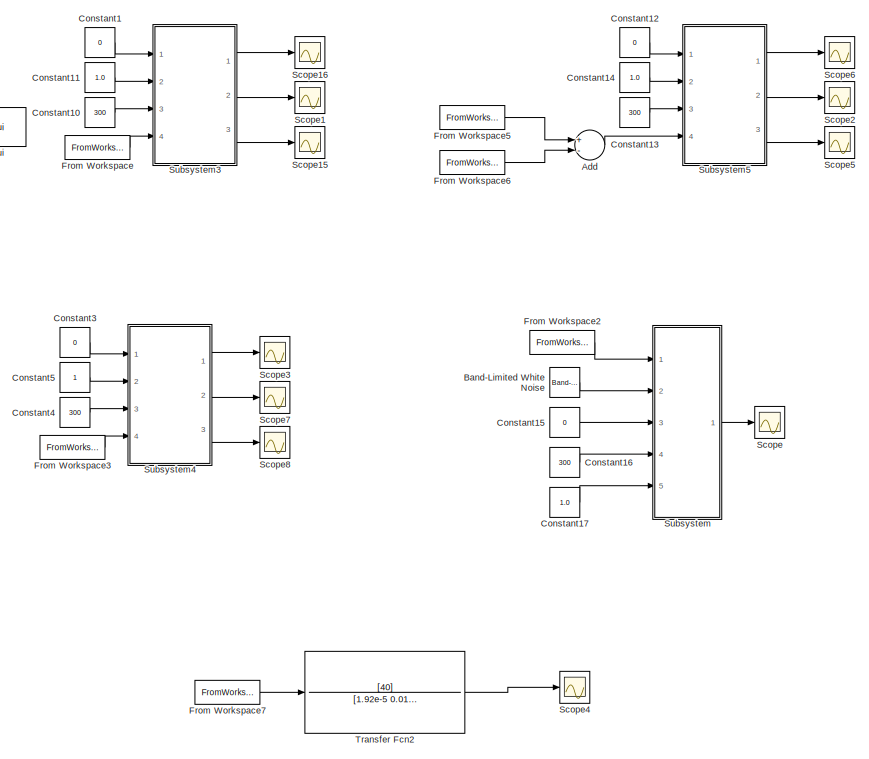
[diagram: root canvas - part 1/2, right side, full height]
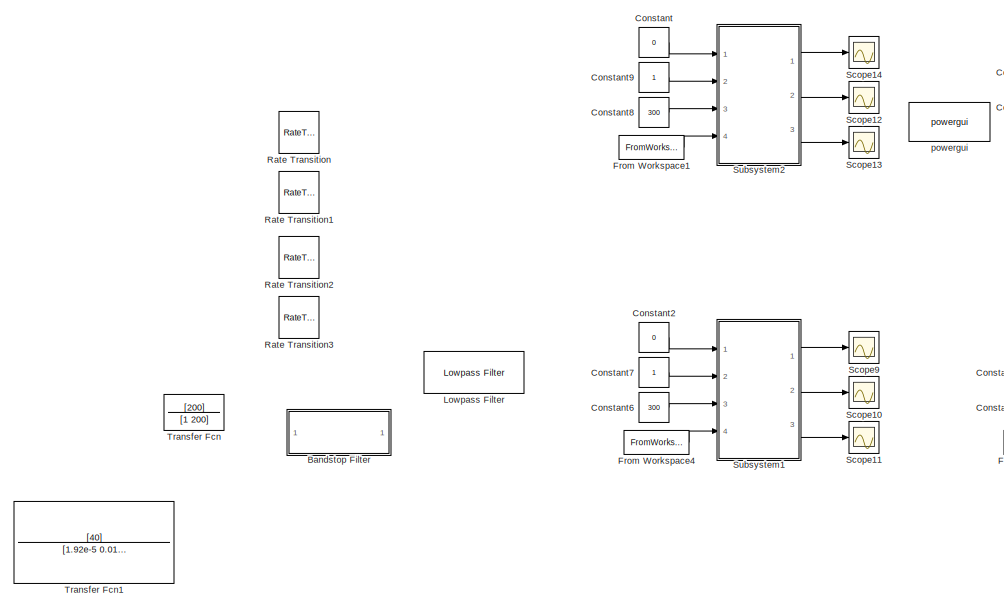
[diagram: root canvas - part 2/2, left side, full height]
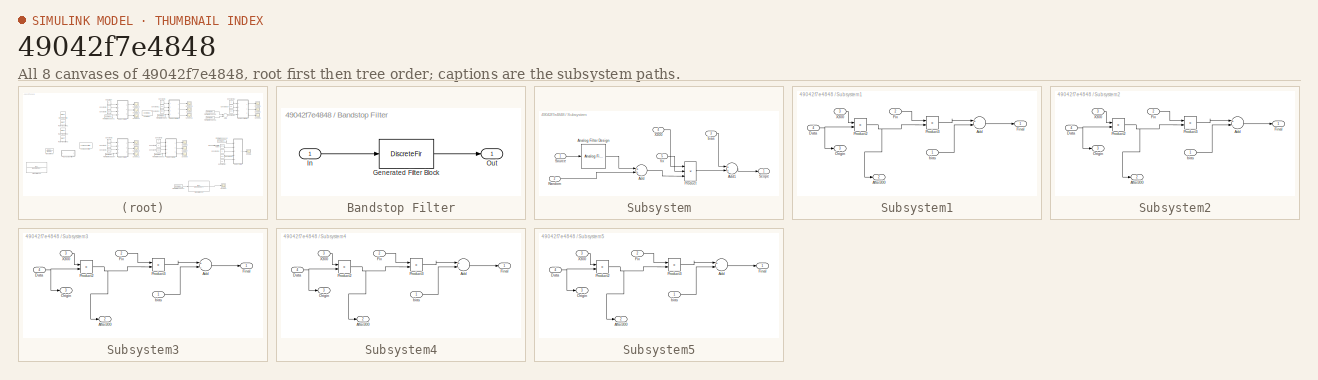
[diagram: thumbnail index - all 8 canvases of the model, root first then tree order]
MODEL slx_49042f7e4848
KIND model
CONFIG AbsTol = auto
CONFIG EnableMultiTasking = off
CONFIG FixedStep = 5e-6
CONFIG MaxStep = auto
CONFIG MinStep = auto
CONFIG RelTol = 1e-3
CONFIG SampleTimeConstraint = Unconstrained
CONFIG Solver = FixedStepAuto
CONFIG SolverName = FixedStepAuto
CONFIG StartTime = 0.0
CONFIG StopTime = 0.08
BLOCK [Sum] Add
  InputSameDT = off
  Inputs = +-
  OutDataTypeStr = Inherit: Inherit via internal rule
  Ports = [2, 1]
  SaturateOnIntegerOverflow = off
BLOCK [Reference] Band-Limited White Noise  REF=simulink/Sources/Band-Limited
White Noise
  Ports = [0, 1]
  SourceBlock = simulink/Sources/Band-Limited\nWhite Noise
  SourceProductBaseCode = SL
  SourceProductName = Simulink
  SourceType = Band-Limited White Noise.
BLOCK [SubSystem] Bandstop Filter
  Commented = on
  CopyFcn = fdesignblkfcn(gcbh, {'CopyFcn'});
  DialogController = fdesignblkfcn
  InitFcn = fdesignblkfcn(gcbh, {'InitFcn'});
  Ports = [1, 1]
  RequestExecContextInheritance = off
  UserDataPersistent = on
  Variant = off
BLOCK [DiscreteFir] Bandstop Filter/Generated Filter Block
  Coefficients = [0.0223633707576158421 -0.00133514714885774629 -0.00129522874823918637 -0.00125157131765571829 -0.0012111989449531328 -0.00116715419445947554 -0.00112656054179939721 -0.00108232798172859372 -0.00104173239829644148 -0.000997513459988745447 -0.000957132044750909003 -0.000913097287102123192 -0.000873138256319086264 -0.000829449599907571868 -0.000790117727737720682 -0.000746907127080915882 -0.00070840...<+51849ch>
  InputPortMap = u0
  InputProcessing = Columns as channels (frame based)
  OutputPortMap = o0
  Ports = [1, 1]
  Tag = BlockMethodSubSystem
BLOCK [Inport] Bandstop Filter/In
  IconDisplay = Port number
BLOCK [Outport] Bandstop Filter/Out
  IconDisplay = Port number
BLOCK [Constant] Constant
  Value = 0
BLOCK [Constant] Constant1
  Value = 0
BLOCK [Constant] Constant10
  Value = 300
BLOCK [Constant] Constant11
  Value = 1.0
BLOCK [Constant] Constant12
  Value = 0
BLOCK [Constant] Constant13
  Value = 300
BLOCK [Constant] Constant14
  Value = 1.0
BLOCK [Constant] Constant15
  Value = 0
BLOCK [Constant] Constant16
  Value = 300
BLOCK [Constant] Constant17
  Value = 1.0
BLOCK [Constant] Constant2
  Value = 0
BLOCK [Constant] Constant3
  Value = 0
BLOCK [Constant] Constant4
  Value = 300
BLOCK [Constant] Constant5
BLOCK [Constant] Constant6
  Value = 300
BLOCK [Constant] Constant7
BLOCK [Constant] Constant8
  Value = 300
BLOCK [Constant] Constant9
BLOCK [FromWorkspace] From Workspace
  SampleTime = 0
  VariableName = [TIME CH1]
  ZeroCross = on
BLOCK [FromWorkspace] From Workspace1
  SampleTime = 0
  VariableName = [TIME CH2]
  ZeroCross = on
BLOCK [FromWorkspace] From Workspace2
  SampleTime = 0
  VariableName = [TIME CH4]
  ZeroCross = on
BLOCK [FromWorkspace] From Workspace3
  SampleTime = 0
  VariableName = [TIME CH4]
  ZeroCross = on
BLOCK [FromWorkspace] From Workspace4
  SampleTime = 0
  VariableName = [TIME CH3]
  ZeroCross = on
BLOCK [FromWorkspace] From Workspace5
  SampleTime = 0
  VariableName = [TIME CH1]
  ZeroCross = on
BLOCK [FromWorkspace] From Workspace6
  SampleTime = 0
  VariableName = [TIME CH2]
  ZeroCross = on
BLOCK [FromWorkspace] From Workspace7
  SampleTime = 0
  VariableName = [TIME CH4]
  ZeroCross = on
BLOCK [Reference] Lowpass Filter  REF=dspfdesign/Lowpass Filter
  Commented = on
  Ports = [1, 1]
  SourceBlock = dspfdesign/Lowpass Filter
  SourceProductBaseCode = DS
  SourceProductName = DSP System Toolbox
  SourceType = dsp.LowpassFilter
BLOCK [RateTransition] Rate Transition
  OutPortSampleTime = 5e-5
BLOCK [RateTransition] Rate Transition1
  OutPortSampleTime = 5e-5
BLOCK [RateTransition] Rate Transition2
  OutPortSampleTime = 5e-5
BLOCK [RateTransition] Rate Transition3
  OutPortSampleTime = 5e-5
BLOCK [Scope] Scope
  NumInputPorts = 1
  Ports = [1]
  ScopeSpecificationString = Simulink.scopes.TimeScopeBlockCfg('CurrentConfiguration', extmgr.ConfigurationSet(extmgr.Configuration('Core','General UI',true),extmgr.Configuration('Core','Source UI',true),extmgr.Configuration('Sources','WiredSimulink',true,'DataLoggingVariableName','CH4_Filtered','DataLogging',true),extmgr.Configuration('Visuals','Time Domain',true,'SerializedDisplays',{struct('MinYLimReal','-241.15193','MaxYL...<+1529ch>
BLOCK [Scope] Scope1
  NumInputPorts = 1
  Ports = [1]
  ScopeSpecificationString = Simulink.scopes.TimeScopeBlockCfg('CurrentConfiguration', extmgr.ConfigurationSet(extmgr.Configuration('Core','General UI',true),extmgr.Configuration('Core','Source UI',true),extmgr.Configuration('Sources','WiredSimulink',true,'DataLogging',true,'DataLoggingVariableName','CH1_300'),extmgr.Configuration('Visuals','Time Domain',true,'SerializedDisplays',{struct('MinYLimReal','-921.375','MaxYLimReal'...<+1491ch>
BLOCK [Scope] Scope10
  NumInputPorts = 1
  Ports = [1]
  ScopeSpecificationString = Simulink.scopes.TimeScopeBlockCfg('CurrentConfiguration', extmgr.ConfigurationSet(extmgr.Configuration('Core','General UI',true),extmgr.Configuration('Core','Source UI',true),extmgr.Configuration('Sources','WiredSimulink',true,'DataLogging',true,'DataLoggingVariableName','CH3_300'),extmgr.Configuration('Visuals','Time Domain',true,'SerializedDisplays',{struct('MinYLimReal','-921.375','MaxYLimReal'...<+1491ch>
BLOCK [Scope] Scope11
  NumInputPorts = 1
  Ports = [1]
  ScopeSpecificationString = Simulink.scopes.TimeScopeBlockCfg('CurrentConfiguration', extmgr.ConfigurationSet(extmgr.Configuration('Core','General UI',true),extmgr.Configuration('Core','Source UI',true),extmgr.Configuration('Sources','WiredSimulink',true,'DataLogging',true,'DataLoggingVariableName','CH3_Origin'),extmgr.Configuration('Visuals','Time Domain',true,'SerializedDisplays',{struct('MinYLimReal','-921.375','MaxYLimRe...<+1519ch>
BLOCK [Scope] Scope12
  NumInputPorts = 1
  Ports = [1]
  ScopeSpecificationString = Simulink.scopes.TimeScopeBlockCfg('CurrentConfiguration', extmgr.ConfigurationSet(extmgr.Configuration('Core','General UI',true),extmgr.Configuration('Core','Source UI',true),extmgr.Configuration('Sources','WiredSimulink',true,'DataLogging',true,'DataLoggingVariableName','CH2_300'),extmgr.Configuration('Visuals','Time Domain',true,'SerializedDisplays',{struct('MinYLimReal','-181.5','MaxYLimReal','...<+1503ch>
BLOCK [Scope] Scope13
  NumInputPorts = 1
  Ports = [1]
  ScopeSpecificationString = Simulink.scopes.TimeScopeBlockCfg('CurrentConfiguration', extmgr.ConfigurationSet(extmgr.Configuration('Core','General UI',true),extmgr.Configuration('Core','Source UI',true),extmgr.Configuration('Sources','WiredSimulink',true,'DataLogging',true,'DataLoggingVariableName','CH2_Origin'),extmgr.Configuration('Visuals','Time Domain',true,'SerializedDisplays',{struct('MinYLimReal','-921.375','MaxYLimRe...<+1519ch>
BLOCK [Scope] Scope14
  NumInputPorts = 1
  Ports = [1]
  ScopeSpecificationString = Simulink.scopes.TimeScopeBlockCfg('CurrentConfiguration', extmgr.ConfigurationSet(extmgr.Configuration('Core','General UI',true),extmgr.Configuration('Core','Source UI',true),extmgr.Configuration('Sources','WiredSimulink',true,'DataLogging',true,'DataLoggingVariableName','CH2_Final'),extmgr.Configuration('Visuals','Time Domain',true,'SerializedDisplays',{struct('MinYLimReal','-184.5','MaxYLimReal'...<+1531ch>
BLOCK [Scope] Scope15
  NumInputPorts = 1
  Ports = [1]
  ScopeSpecificationString = Simulink.scopes.TimeScopeBlockCfg('CurrentConfiguration', extmgr.ConfigurationSet(extmgr.Configuration('Core','General UI',true),extmgr.Configuration('Core','Source UI',true),extmgr.Configuration('Sources','WiredSimulink',true,'DataLogging',true,'DataLoggingVariableName','CH1_Origin'),extmgr.Configuration('Visuals','Time Domain',true,'SerializedDisplays',{struct('MinYLimReal','-921.375','MaxYLimRe...<+1519ch>
BLOCK [Scope] Scope16
  NumInputPorts = 1
  Ports = [1]
  ScopeSpecificationString = Simulink.scopes.TimeScopeBlockCfg('CurrentConfiguration', extmgr.ConfigurationSet(extmgr.Configuration('Core','General UI',true),extmgr.Configuration('Core','Source UI',true),extmgr.Configuration('Sources','WiredSimulink',true,'DataLogging',true,'DataLoggingVariableName','CH1_Final'),extmgr.Configuration('Visuals','Time Domain',true,'SerializedDisplays',{struct('MinYLimReal','-165.00000','MaxYLimR...<+1488ch>
BLOCK [Scope] Scope2
  NumInputPorts = 1
  Ports = [1]
  ScopeSpecificationString = Simulink.scopes.TimeScopeBlockCfg('CurrentConfiguration', extmgr.ConfigurationSet(extmgr.Configuration('Core','General UI',true),extmgr.Configuration('Core','Source UI',true),extmgr.Configuration('Sources','WiredSimulink',true,'DataLogging',true,'DataLoggingVariableName','Uab_X300'),extmgr.Configuration('Visuals','Time Domain',true,'SerializedDisplays',{struct('MinYLimReal','-921.375','MaxYLimReal...<+1492ch>
BLOCK [Scope] Scope3
  NumInputPorts = 1
  Ports = [1]
  ScopeSpecificationString = Simulink.scopes.TimeScopeBlockCfg('CurrentConfiguration', extmgr.ConfigurationSet(extmgr.Configuration('Core','General UI',true),extmgr.Configuration('Core','Source UI',true),extmgr.Configuration('Sources','WiredSimulink',true,'DataLogging',true,'DataLoggingVariableName','CH4_Final'),extmgr.Configuration('Visuals','Time Domain',true,'SerializedDisplays',{struct('MinYLimReal','-318.00000','MaxYLimR...<+1530ch>
BLOCK [Scope] Scope4
  NumInputPorts = 1
  Ports = [1]
  ScopeSpecificationString = Simulink.scopes.TimeScopeBlockCfg('CurrentConfiguration', extmgr.ConfigurationSet(extmgr.Configuration('Core','General UI',true),extmgr.Configuration('Core','Source UI',true),extmgr.Configuration('Sources','WiredSimulink',true,'DataLoggingVariableName','ScopeData1','DataLogging',true),extmgr.Configuration('Visuals','Time Domain',true,'SerializedDisplays',{struct('MinYLimReal','-0.83121','MaxYLimRe...<+1502ch>
BLOCK [Scope] Scope5
  NumInputPorts = 1
  Ports = [1]
  ScopeSpecificationString = Simulink.scopes.TimeScopeBlockCfg('CurrentConfiguration', extmgr.ConfigurationSet(extmgr.Configuration('Core','General UI',true),extmgr.Configuration('Core','Source UI',true),extmgr.Configuration('Sources','WiredSimulink',true,'DataLogging',true,'DataLoggingVariableName','Uab_origin'),extmgr.Configuration('Visuals','Time Domain',true,'SerializedDisplays',{struct('MinYLimReal','-921.375','MaxYLimRe...<+1519ch>
BLOCK [Scope] Scope6
  NumInputPorts = 1
  Ports = [1]
  ScopeSpecificationString = Simulink.scopes.TimeScopeBlockCfg('CurrentConfiguration', extmgr.ConfigurationSet(extmgr.Configuration('Core','General UI',true),extmgr.Configuration('Core','Source UI',true),extmgr.Configuration('Sources','WiredSimulink',true,'DataLogging',true,'DataLoggingVariableName','Uab_Final'),extmgr.Configuration('Visuals','Time Domain',true,'SerializedDisplays',{struct('MinYLimReal','-312.00000','MaxYLimR...<+1529ch>
BLOCK [Scope] Scope7
  NumInputPorts = 1
  Ports = [1]
  ScopeSpecificationString = Simulink.scopes.TimeScopeBlockCfg('CurrentConfiguration', extmgr.ConfigurationSet(extmgr.Configuration('Core','General UI',true),extmgr.Configuration('Core','Source UI',true),extmgr.Configuration('Sources','WiredSimulink',true,'DataLogging',true,'DataLoggingVariableName','CH4_300'),extmgr.Configuration('Visuals','Time Domain',true,'SerializedDisplays',{struct('MinYLimReal','-921.375','MaxYLimReal'...<+1490ch>
BLOCK [Scope] Scope8
  NumInputPorts = 1
  Ports = [1]
  ScopeSpecificationString = Simulink.scopes.TimeScopeBlockCfg('CurrentConfiguration', extmgr.ConfigurationSet(extmgr.Configuration('Core','General UI',true),extmgr.Configuration('Core','Source UI',true),extmgr.Configuration('Sources','WiredSimulink',true,'DataLogging',true,'DataLoggingVariableName','CH4_Origin'),extmgr.Configuration('Visuals','Time Domain',true,'SerializedDisplays',{struct('MinYLimReal','-921.375','MaxYLimRe...<+1518ch>
BLOCK [Scope] Scope9
  NumInputPorts = 1
  Ports = [1]
  ScopeSpecificationString = Simulink.scopes.TimeScopeBlockCfg('CurrentConfiguration', extmgr.ConfigurationSet(extmgr.Configuration('Core','General UI',true),extmgr.Configuration('Core','Source UI',true),extmgr.Configuration('Sources','WiredSimulink',true,'DataLogging',true,'DataLoggingVariableName','CH3_Final'),extmgr.Configuration('Visuals','Time Domain',true,'SerializedDisplays',{struct('MinYLimReal','-180.00000','MaxYLimR...<+1530ch>
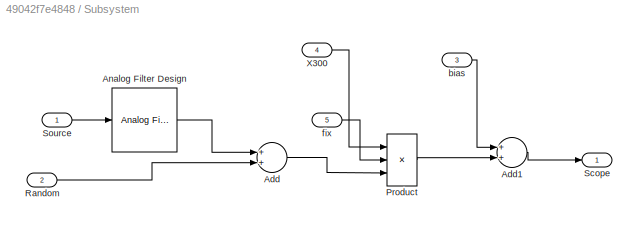
BLOCK [SubSystem] Subsystem
  Ports = [5, 1]
  RequestExecContextInheritance = off
  Variant = off
BLOCK [Sum] Subsystem/Add
  InputSameDT = off
  OutDataTypeStr = Inherit: Inherit via internal rule
  Ports = [2, 1]
  SaturateOnIntegerOverflow = off
BLOCK [Sum] Subsystem/Add1
  InputSameDT = off
  OutDataTypeStr = Inherit: Inherit via internal rule
  Ports = [2, 1]
  SaturateOnIntegerOverflow = off
BLOCK [Reference] Subsystem/Analog Filter Design  REF=dsparch4/Analog
Filter Design
  Ports = [1, 1]
  SourceBlock = dsparch4/Analog\nFilter Design
  SourceProductBaseCode = DS
  SourceProductName = DSP System Toolbox
  SourceType = Analog Filter Design
BLOCK [Product] Subsystem/Product
  InputSameDT = off
  Inputs = 3
  OutDataTypeStr = Inherit: Inherit via internal rule
  Ports = [3, 1]
  RndMeth = Floor
  SaturateOnIntegerOverflow = off
BLOCK [Inport] Subsystem/Random
  IconDisplay = Port number
  Port = 2
BLOCK [Outport] Subsystem/Scope
  IconDisplay = Port number
BLOCK [Inport] Subsystem/Source
  IconDisplay = Port number
BLOCK [Inport] Subsystem/X300
  IconDisplay = Port number
  Port = 4
BLOCK [Inport] Subsystem/bias
  IconDisplay = Port number
  Port = 3
BLOCK [Inport] Subsystem/fix
  IconDisplay = Port number
  Port = 5
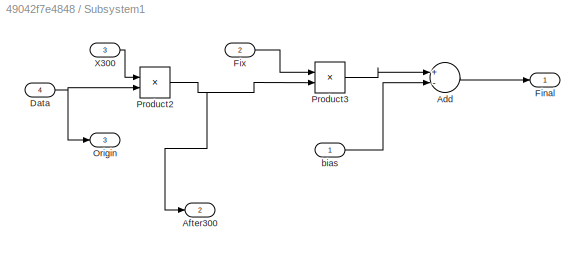
BLOCK [SubSystem] Subsystem1
  Ports = [4, 3]
  RequestExecContextInheritance = off
  Variant = off
BLOCK [Sum] Subsystem1/Add
  InputSameDT = off
  Inputs = +-
  OutDataTypeStr = Inherit: Inherit via internal rule
  Ports = [2, 1]
  SaturateOnIntegerOverflow = off
BLOCK [Outport] Subsystem1/After300
  IconDisplay = Port number
  Port = 2
BLOCK [Inport] Subsystem1/Data
  IconDisplay = Port number
  Port = 4
BLOCK [Outport] Subsystem1/Final
  IconDisplay = Port number
BLOCK [Inport] Subsystem1/Fix
  IconDisplay = Port number
  Port = 2
BLOCK [Outport] Subsystem1/Origin
  IconDisplay = Port number
  Port = 3
BLOCK [Product] Subsystem1/Product2
  InputSameDT = off
  OutDataTypeStr = Inherit: Inherit via internal rule
  Ports = [2, 1]
  RndMeth = Floor
  SaturateOnIntegerOverflow = off
BLOCK [Product] Subsystem1/Product3
  InputSameDT = off
  OutDataTypeStr = Inherit: Inherit via internal rule
  Ports = [2, 1]
  RndMeth = Floor
  SaturateOnIntegerOverflow = off
BLOCK [Inport] Subsystem1/X300
  IconDisplay = Port number
  Port = 3
BLOCK [Inport] Subsystem1/bias
  IconDisplay = Port number
BLOCK [SubSystem] Subsystem2
  Ports = [4, 3]
  RequestExecContextInheritance = off
  Variant = off
BLOCK [Sum] Subsystem2/Add
  InputSameDT = off
  Inputs = +-
  OutDataTypeStr = Inherit: Inherit via internal rule
  Ports = [2, 1]
  SaturateOnIntegerOverflow = off
BLOCK [Outport] Subsystem2/After300
  IconDisplay = Port number
  Port = 2
BLOCK [Inport] Subsystem2/Data
  IconDisplay = Port number
  Port = 4
BLOCK [Outport] Subsystem2/Final
  IconDisplay = Port number
BLOCK [Inport] Subsystem2/Fix
  IconDisplay = Port number
  Port = 2
BLOCK [Outport] Subsystem2/Origin
  IconDisplay = Port number
  Port = 3
BLOCK [Product] Subsystem2/Product2
  InputSameDT = off
  OutDataTypeStr = Inherit: Inherit via internal rule
  Ports = [2, 1]
  RndMeth = Floor
  SaturateOnIntegerOverflow = off
BLOCK [Product] Subsystem2/Product3
  InputSameDT = off
  OutDataTypeStr = Inherit: Inherit via internal rule
  Ports = [2, 1]
  RndMeth = Floor
  SaturateOnIntegerOverflow = off
BLOCK [Inport] Subsystem2/X300
  IconDisplay = Port number
  Port = 3
BLOCK [Inport] Subsystem2/bias
  IconDisplay = Port number
BLOCK [SubSystem] Subsystem3
  Ports = [4, 3]
  RequestExecContextInheritance = off
  Variant = off
BLOCK [Sum] Subsystem3/Add
  InputSameDT = off
  Inputs = +-
  OutDataTypeStr = Inherit: Inherit via internal rule
  Ports = [2, 1]
  SaturateOnIntegerOverflow = off
BLOCK [Outport] Subsystem3/After300
  IconDisplay = Port number
  Port = 2
BLOCK [Inport] Subsystem3/Data
  IconDisplay = Port number
  Port = 4
BLOCK [Outport] Subsystem3/Final
  IconDisplay = Port number
BLOCK [Inport] Subsystem3/Fix
  IconDisplay = Port number
  Port = 2
BLOCK [Outport] Subsystem3/Origin
  IconDisplay = Port number
  Port = 3
BLOCK [Product] Subsystem3/Product2
  InputSameDT = off
  OutDataTypeStr = Inherit: Inherit via internal rule
  Ports = [2, 1]
  RndMeth = Floor
  SaturateOnIntegerOverflow = off
BLOCK [Product] Subsystem3/Product3
  InputSameDT = off
  OutDataTypeStr = Inherit: Inherit via internal rule
  Ports = [2, 1]
  RndMeth = Floor
  SaturateOnIntegerOverflow = off
BLOCK [Inport] Subsystem3/X300
  IconDisplay = Port number
  Port = 3
BLOCK [Inport] Subsystem3/bias
  IconDisplay = Port number
BLOCK [SubSystem] Subsystem4
  Ports = [4, 3]
  RequestExecContextInheritance = off
  Variant = off
BLOCK [Sum] Subsystem4/Add
  InputSameDT = off
  Inputs = +-
  OutDataTypeStr = Inherit: Inherit via internal rule
  Ports = [2, 1]
  SaturateOnIntegerOverflow = off
BLOCK [Outport] Subsystem4/After300
  IconDisplay = Port number
  Port = 2
BLOCK [Inport] Subsystem4/Data
  IconDisplay = Port number
  Port = 4
BLOCK [Outport] Subsystem4/Final
  IconDisplay = Port number
BLOCK [Inport] Subsystem4/Fix
  IconDisplay = Port number
  Port = 2
BLOCK [Outport] Subsystem4/Origin
  IconDisplay = Port number
  Port = 3
BLOCK [Product] Subsystem4/Product2
  InputSameDT = off
  OutDataTypeStr = Inherit: Inherit via internal rule
  Ports = [2, 1]
  RndMeth = Floor
  SaturateOnIntegerOverflow = off
BLOCK [Product] Subsystem4/Product3
  InputSameDT = off
  OutDataTypeStr = Inherit: Inherit via internal rule
  Ports = [2, 1]
  RndMeth = Floor
  SaturateOnIntegerOverflow = off
BLOCK [Inport] Subsystem4/X300
  IconDisplay = Port number
  Port = 3
BLOCK [Inport] Subsystem4/bias
  IconDisplay = Port number
BLOCK [SubSystem] Subsystem5
  Ports = [4, 3]
  RequestExecContextInheritance = off
  Variant = off
BLOCK [Sum] Subsystem5/Add
  InputSameDT = off
  Inputs = +-
  OutDataTypeStr = Inherit: Inherit via internal rule
  Ports = [2, 1]
  SaturateOnIntegerOverflow = off
BLOCK [Outport] Subsystem5/After300
  IconDisplay = Port number
  Port = 2
BLOCK [Inport] Subsystem5/Data
  IconDisplay = Port number
  Port = 4
BLOCK [Outport] Subsystem5/Final
  IconDisplay = Port number
BLOCK [Inport] Subsystem5/Fix
  IconDisplay = Port number
  Port = 2
BLOCK [Outport] Subsystem5/Origin
  IconDisplay = Port number
  Port = 3
BLOCK [Product] Subsystem5/Product2
  InputSameDT = off
  OutDataTypeStr = Inherit: Inherit via internal rule
  Ports = [2, 1]
  RndMeth = Floor
  SaturateOnIntegerOverflow = off
BLOCK [Product] Subsystem5/Product3
  InputSameDT = off
  OutDataTypeStr = Inherit: Inherit via internal rule
  Ports = [2, 1]
  RndMeth = Floor
  SaturateOnIntegerOverflow = off
BLOCK [Inport] Subsystem5/X300
  IconDisplay = Port number
  Port = 3
BLOCK [Inport] Subsystem5/bias
  IconDisplay = Port number
BLOCK [TransferFcn] Transfer Fcn
  Commented = on
  Denominator = [1 200]
  Numerator = [200]
BLOCK [TransferFcn] Transfer Fcn1
  Commented = on
  Denominator = [1.92e-5 0.016 40]
  Numerator = [40]
BLOCK [TransferFcn] Transfer Fcn2
  Denominator = [1.92e-5 0.016 40]
  Numerator = [40]
BLOCK [Reference] powergui  REF=powerlib/powergui
  Ports = []
  Priority = 1
  SourceBlock = powerlib/powergui
  SourceProductBaseCode = PS
  SourceProductName = Simscape Power Systems
  SourceType = PSB option menu block
LINE Add:1 -> Subsystem5:4
LINE Band-Limited White Noise:1 -> Subsystem:2
LINE Constant10:1 -> Subsystem3:3
LINE Constant11:1 -> Subsystem3:2
LINE Constant12:1 -> Subsystem5:1
LINE Constant13:1 -> Subsystem5:3
LINE Constant14:1 -> Subsystem5:2
LINE Constant15:1 -> Subsystem:3
LINE Constant16:1 -> Subsystem:4
LINE Constant17:1 -> Subsystem:5
LINE Constant1:1 -> Subsystem3:1
LINE Constant2:1 -> Subsystem1:1
LINE Constant3:1 -> Subsystem4:1
LINE Constant4:1 -> Subsystem4:3
LINE Constant5:1 -> Subsystem4:2
LINE Constant6:1 -> Subsystem1:3
LINE Constant7:1 -> Subsystem1:2
LINE Constant8:1 -> Subsystem2:3
LINE Constant9:1 -> Subsystem2:2
LINE Constant:1 -> Subsystem2:1
LINE From Workspace1:1 -> Subsystem2:4
LINE From Workspace2:1 -> Subsystem:1
LINE From Workspace3:1 -> Subsystem4:4
LINE From Workspace4:1 -> Subsystem1:4
LINE From Workspace5:1 -> Add:1
LINE From Workspace6:1 -> Add:2
LINE From Workspace7:1 -> Transfer Fcn2:1
LINE From Workspace:1 -> Subsystem3:4
LINE Subsystem/Add1:1 -> Subsystem/Scope:1
LINE Subsystem/Add:1 -> Subsystem/Product:3
LINE Subsystem/Analog Filter Design:1 -> Subsystem/Add:1
LINE Subsystem/Product:1 -> Subsystem/Add1:2
LINE Subsystem/Random:1 -> Subsystem/Add:2
LINE Subsystem/Source:1 -> Subsystem/Analog Filter Design:1
LINE Subsystem/X300:1 -> Subsystem/Product:1
LINE Subsystem/bias:1 -> Subsystem/Add1:1
LINE Subsystem/fix:1 -> Subsystem/Product:2
LINE Subsystem1/Add:1 -> Subsystem1/Final:1
NET Subsystem1/Data:1 -> Subsystem1/Origin:1, Subsystem1/Product2:2
LINE Subsystem1/Fix:1 -> Subsystem1/Product3:1
NET Subsystem1/Product2:1 -> Subsystem1/After300:1, Subsystem1/Product3:2
LINE Subsystem1/Product3:1 -> Subsystem1/Add:1
LINE Subsystem1/X300:1 -> Subsystem1/Product2:1
LINE Subsystem1/bias:1 -> Subsystem1/Add:2
LINE Subsystem1:1 -> Scope9:1
LINE Subsystem1:2 -> Scope10:1
LINE Subsystem1:3 -> Scope11:1
LINE Subsystem2/Add:1 -> Subsystem2/Final:1
NET Subsystem2/Data:1 -> Subsystem2/Origin:1, Subsystem2/Product2:2
LINE Subsystem2/Fix:1 -> Subsystem2/Product3:1
NET Subsystem2/Product2:1 -> Subsystem2/After300:1, Subsystem2/Product3:2
LINE Subsystem2/Product3:1 -> Subsystem2/Add:1
LINE Subsystem2/X300:1 -> Subsystem2/Product2:1
LINE Subsystem2/bias:1 -> Subsystem2/Add:2
LINE Subsystem2:1 -> Scope14:1
LINE Subsystem2:2 -> Scope12:1
LINE Subsystem2:3 -> Scope13:1
LINE Subsystem3/Add:1 -> Subsystem3/Final:1
NET Subsystem3/Data:1 -> Subsystem3/Origin:1, Subsystem3/Product2:2
LINE Subsystem3/Fix:1 -> Subsystem3/Product3:1
NET Subsystem3/Product2:1 -> Subsystem3/After300:1, Subsystem3/Product3:2
LINE Subsystem3/Product3:1 -> Subsystem3/Add:1
LINE Subsystem3/X300:1 -> Subsystem3/Product2:1
LINE Subsystem3/bias:1 -> Subsystem3/Add:2
LINE Subsystem3:1 -> Scope16:1
LINE Subsystem3:2 -> Scope1:1
LINE Subsystem3:3 -> Scope15:1
LINE Subsystem4/Add:1 -> Subsystem4/Final:1
NET Subsystem4/Data:1 -> Subsystem4/Origin:1, Subsystem4/Product2:2
LINE Subsystem4/Fix:1 -> Subsystem4/Product3:1
NET Subsystem4/Product2:1 -> Subsystem4/After300:1, Subsystem4/Product3:2
LINE Subsystem4/Product3:1 -> Subsystem4/Add:1
LINE Subsystem4/X300:1 -> Subsystem4/Product2:1
LINE Subsystem4/bias:1 -> Subsystem4/Add:2
LINE Subsystem4:1 -> Scope3:1
LINE Subsystem4:2 -> Scope7:1
LINE Subsystem4:3 -> Scope8:1
LINE Subsystem5/Add:1 -> Subsystem5/Final:1
NET Subsystem5/Data:1 -> Subsystem5/Origin:1, Subsystem5/Product2:2
LINE Subsystem5/Fix:1 -> Subsystem5/Product3:1
NET Subsystem5/Product2:1 -> Subsystem5/After300:1, Subsystem5/Product3:2
LINE Subsystem5/Product3:1 -> Subsystem5/Add:1
LINE Subsystem5/X300:1 -> Subsystem5/Product2:1
LINE Subsystem5/bias:1 -> Subsystem5/Add:2
LINE Subsystem5:1 -> Scope6:1
LINE Subsystem5:2 -> Scope2:1
LINE Subsystem5:3 -> Scope5:1
LINE Subsystem:1 -> Scope:1
LINE Transfer Fcn2:1 -> Scope4:1
note: NET lines group one-source signal fan-out (src -> all destinations, sorted); 1:1 wires keep LINE
